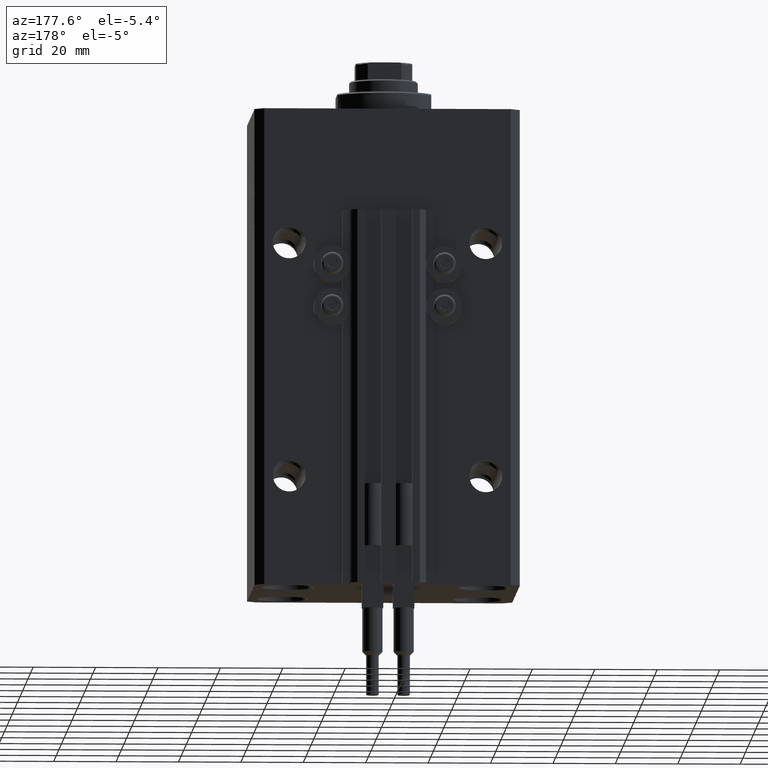
[diagram: clean part render]
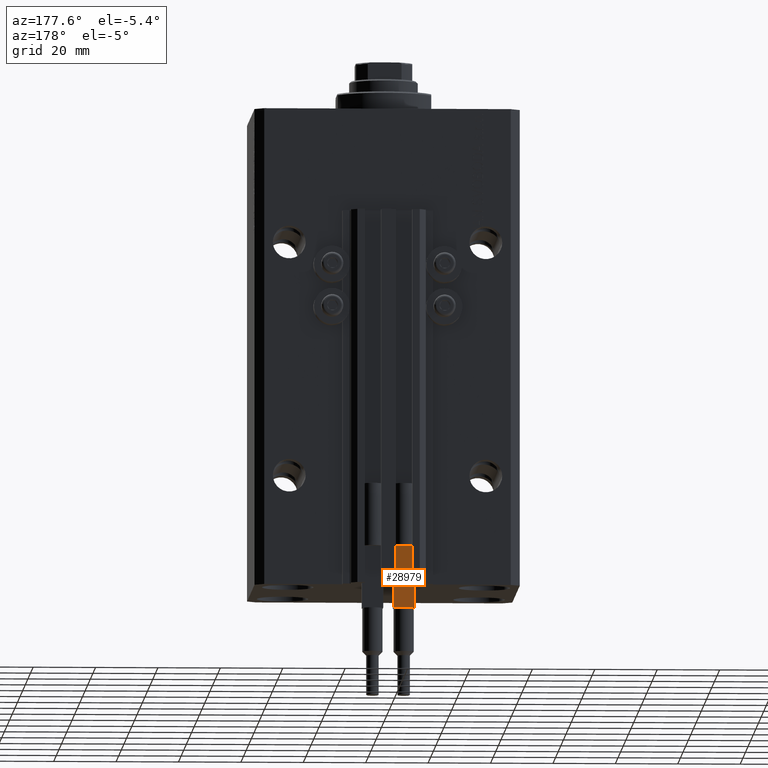
[diagram: same view with one face highlighted and labeled with its STEP entity id]
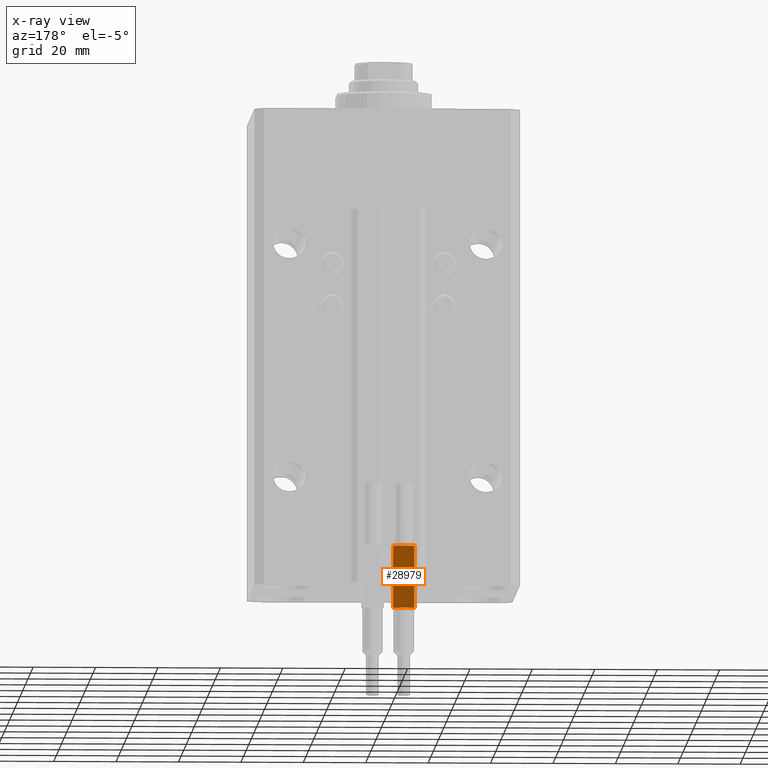
[diagram: x-ray of the same camera — body ghosted, the highlighted face saturated]
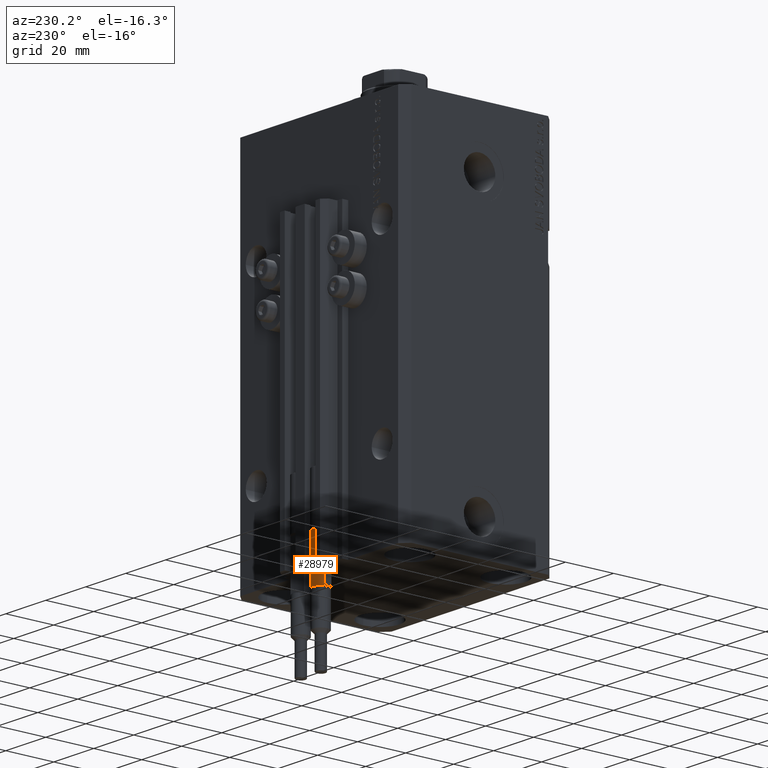
[diagram: same view with one face highlighted and labeled with its STEP entity id]
A machine part, auxiliary view. The second image highlights one B-rep face of the part: STEP entity #28979.
The next image is the same camera in x-ray: the body ghosted, the highlighted face saturated — about 0% of this face is hidden behind the body in this view.
A second angle (auxiliary view) of the same face is appended — the face is thin or edge-on in the first view.
In plain terms, the highlighted planar face has unit normal (0, -1, 0).
Its self-contained STEP definition (entity closure, byte-faithful):
#667 = CARTESIAN_POINT ( 'NONE',  ( 3.051229260478471428, 1.500000000000000000, 20.00000000000000000 ) ) ;
#720 = ORIENTED_EDGE ( 'NONE', *, *, #27185, .F. ) ;
#1361 = EDGE_CURVE ( 'NONE', #46749, #33000, #40797, .T. ) ;
#1832 = VERTEX_POINT ( 'NONE', #3157 ) ;
#2093 = EDGE_CURVE ( 'NONE', #8730, #43815, #3348, .T. ) ;
#2956 = ORIENTED_EDGE ( 'NONE', *, *, #9100, .F. ) ;
#3157 = CARTESIAN_POINT ( 'NONE',  ( -3.051229260478471428, 1.500000000000000000, 20.00000000000000000 ) ) ;
#3348 = LINE ( 'NONE', #18642, #23841 ) ;
#4867 = EDGE_CURVE ( 'NONE', #6082, #1832, #19961, .T. ) ;
#6082 = VERTEX_POINT ( 'NONE', #667 ) ;
#8346 = EDGE_CURVE ( 'NONE', #1832, #33000, #8586, .T. ) ;
#8586 = LINE ( 'NONE', #22705, #29711 ) ;
#8723 = FACE_OUTER_BOUND ( 'NONE', #20710, .T. ) ;
#8730 = VERTEX_POINT ( 'NONE', #27576 ) ;
#9100 = EDGE_CURVE ( 'NONE', #43954, #27380, #11335, .T. ) ;
#9218 = PLANE ( 'NONE',  #20896 ) ;
#10419 = EDGE_CURVE ( 'NONE', #43815, #6082, #46971, .T. ) ;
#11335 = LINE ( 'NONE', #33635, #45523 ) ;
#12912 = DIRECTION ( 'NONE',  ( 0.000000000000000000, -1.000000000000000000, 0.000000000000000000 ) ) ;
#13817 = DIRECTION ( 'NONE',  ( -0.000000000000000000, -0.000000000000000000, -1.000000000000000000 ) ) ;
#15509 = DIRECTION ( 'NONE',  ( -1.000000000000000000, -0.000000000000000000, -0.000000000000000000 ) ) ;
#15852 = ORIENTED_EDGE ( 'NONE', *, *, #36949, .F. ) ;
#16466 = ORIENTED_EDGE ( 'NONE', *, *, #2093, .T. ) ;
#16711 = CARTESIAN_POINT ( 'NONE',  ( -2.883140648667699146, 1.500000000000000000, 40.00000000000000000 ) ) ;
#17658 = VECTOR ( 'NONE', #37318, 1000.000000000000000 ) ;
#18642 = CARTESIAN_POINT ( 'NONE',  ( 3.400000000000000355, 1.500000000000000000, 40.00000000000000000 ) ) ;
#19961 = LINE ( 'NONE', #23689, #46071 ) ;
#20564 = DIRECTION ( 'NONE',  ( 0.000000000000000000, -0.000000000000000000, -1.000000000000000000 ) ) ;
#20710 = EDGE_LOOP ( 'NONE', ( #38879, #41009, #45708, #42482, #720, #2956, #15852, #16466 ) ) ;
#20896 = AXIS2_PLACEMENT_3D ( 'NONE', #32470, #12912, #20564 ) ;
#21993 = CARTESIAN_POINT ( 'NONE',  ( 2.883140648667699146, 1.500000000000000000, 40.00000000000000000 ) ) ;
#22705 = CARTESIAN_POINT ( 'NONE',  ( -3.399999999999999911, 1.500000000000000000, 20.00000000000000000 ) ) ;
#23689 = CARTESIAN_POINT ( 'NONE',  ( -3.399999999999999911, 1.500000000000000000, 20.00000000000000000 ) ) ;
#23841 = VECTOR ( 'NONE', #37699, 1000.000000000000000 ) ;
#27185 = EDGE_CURVE ( 'NONE', #27380, #46749, #29657, .T. ) ;
#27380 = VERTEX_POINT ( 'NONE', #16711 ) ;
#27576 = CARTESIAN_POINT ( 'NONE',  ( 3.400000000000000355, 1.500000000000000000, 40.00000000000000000 ) ) ;
#27647 = DIRECTION ( 'NONE',  ( -1.000000000000000000, -0.000000000000000000, -0.000000000000000000 ) ) ;
#27769 = VECTOR ( 'NONE', #13817, 1000.000000000000000 ) ;
#28172 = CARTESIAN_POINT ( 'NONE',  ( -3.399999999999999911, 1.500000000000000000, 20.00000000000000000 ) ) ;
#28287 = VECTOR ( 'NONE', #43264, 1000.000000000000000 ) ;
#28979 = ADVANCED_FACE ( 'NONE', ( #8723 ), #9218, .F. ) ;
#29419 = DIRECTION ( 'NONE',  ( -1.000000000000000000, -0.000000000000000000, -0.000000000000000000 ) ) ;
#29657 = LINE ( 'NONE', #32450, #17658 ) ;
#29711 = VECTOR ( 'NONE', #15509, 1000.000000000000000 ) ;
#31837 = LINE ( 'NONE', #42975, #48412 ) ;
#32450 = CARTESIAN_POINT ( 'NONE',  ( -3.399999999999999911, 1.500000000000000000, 40.00000000000000000 ) ) ;
#32470 = CARTESIAN_POINT ( 'NONE',  ( -3.399999999999999911, 1.500000000000000000, 40.00000000000000000 ) ) ;
#32888 = CARTESIAN_POINT ( 'NONE',  ( -3.399999999999999911, 1.500000000000000000, 40.00000000000000000 ) ) ;
#33000 = VERTEX_POINT ( 'NONE', #46612 ) ;
#33635 = CARTESIAN_POINT ( 'NONE',  ( -3.399999999999999911, 1.500000000000000000, 40.00000000000000000 ) ) ;
#35068 = DIRECTION ( 'NONE',  ( -1.000000000000000000, -0.000000000000000000, -0.000000000000000000 ) ) ;
#36949 = EDGE_CURVE ( 'NONE', #8730, #43954, #31837, .T. ) ;
#37318 = DIRECTION ( 'NONE',  ( -1.000000000000000000, -0.000000000000000000, -0.000000000000000000 ) ) ;
#37699 = DIRECTION ( 'NONE',  ( -0.000000000000000000, -0.000000000000000000, -1.000000000000000000 ) ) ;
#38879 = ORIENTED_EDGE ( 'NONE', *, *, #10419, .T. ) ;
#39284 = CARTESIAN_POINT ( 'NONE',  ( -3.399999999999999911, 1.500000000000000000, 40.00000000000000000 ) ) ;
#40797 = LINE ( 'NONE', #32888, #27769 ) ;
#41009 = ORIENTED_EDGE ( 'NONE', *, *, #4867, .T. ) ;
#42482 = ORIENTED_EDGE ( 'NONE', *, *, #1361, .F. ) ;
#42975 = CARTESIAN_POINT ( 'NONE',  ( -3.399999999999999911, 1.500000000000000000, 40.00000000000000000 ) ) ;
#43264 = DIRECTION ( 'NONE',  ( -1.000000000000000000, -0.000000000000000000, -0.000000000000000000 ) ) ;
#43815 = VERTEX_POINT ( 'NONE', #46758 ) ;
#43954 = VERTEX_POINT ( 'NONE', #21993 ) ;
#45523 = VECTOR ( 'NONE', #29419, 1000.000000000000000 ) ;
#45708 = ORIENTED_EDGE ( 'NONE', *, *, #8346, .T. ) ;
#46071 = VECTOR ( 'NONE', #27647, 1000.000000000000000 ) ;
#46612 = CARTESIAN_POINT ( 'NONE',  ( -3.399999999999999911, 1.500000000000000000, 20.00000000000000000 ) ) ;
#46749 = VERTEX_POINT ( 'NONE', #39284 ) ;
#46758 = CARTESIAN_POINT ( 'NONE',  ( 3.400000000000000355, 1.500000000000000000, 20.00000000000000000 ) ) ;
#46971 = LINE ( 'NONE', #28172, #28287 ) ;
#48412 = VECTOR ( 'NONE', #35068, 1000.000000000000000 ) ;